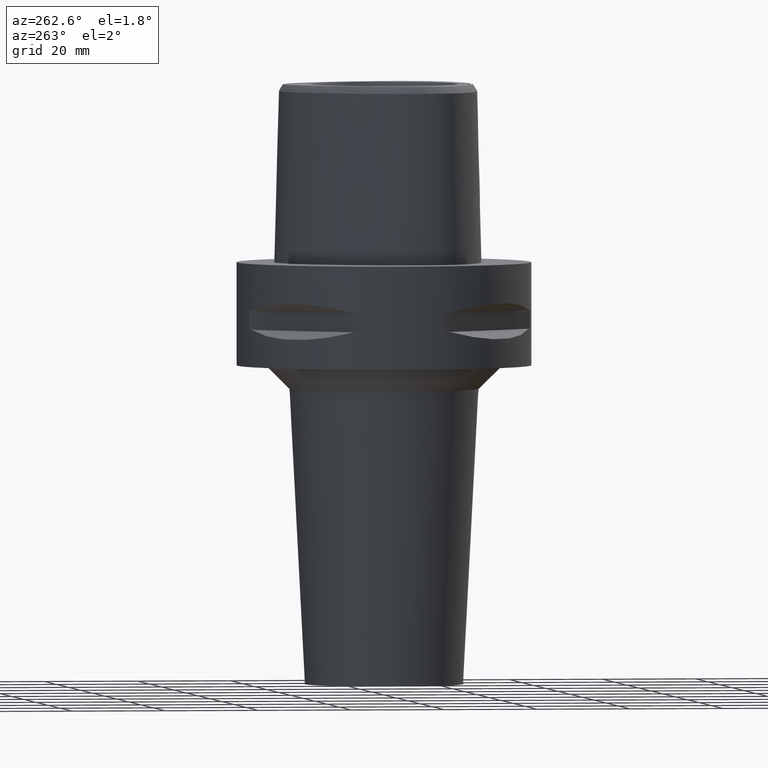
[diagram: clean part render]
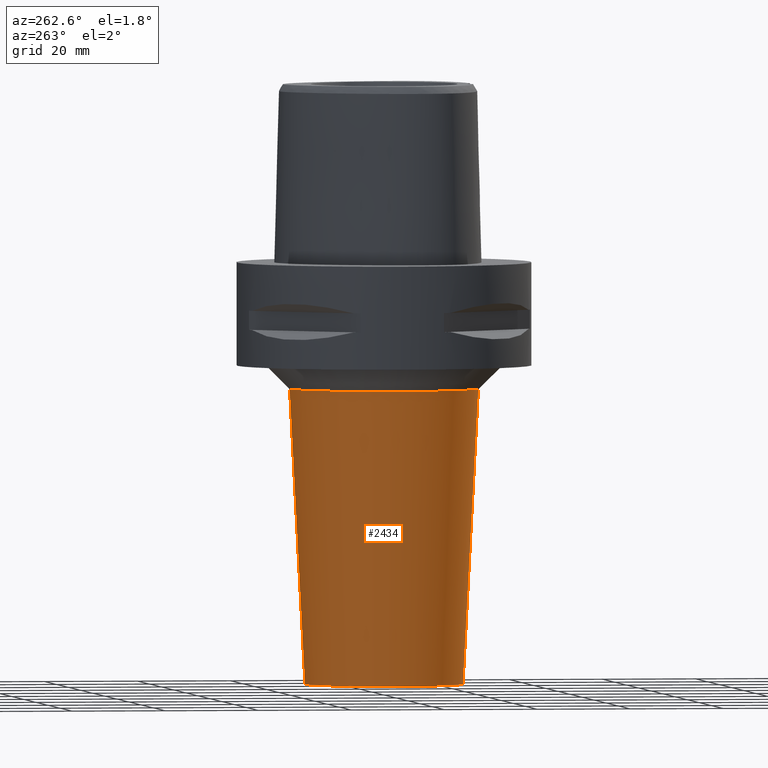
[diagram: same view with one face highlighted and labeled with its STEP entity id]
A machine part, auxiliary view. The second image highlights one B-rep face of the part: STEP entity #2434.
In plain terms, the highlighted conical surface has half-angle 3 deg.
Its self-contained STEP definition (entity closure, byte-faithful):
#547=CARTESIAN_POINT('',(0.E0,0.E0,-2.7E1));
#548=DIRECTION('',(0.E0,0.E0,-1.E0));
#549=DIRECTION('',(0.E0,-1.E0,0.E0));
#550=AXIS2_PLACEMENT_3D('',#547,#548,#549);
#562=DIRECTION('',(0.E0,-5.233595624292E-2,-9.986295347546E-1));
#563=VECTOR('',#562,6.308645779787E1);
#564=CARTESIAN_POINT('',(0.E0,2.030169009483E1,-2.7E1));
#565=LINE('',#564,#563);
#577=DIRECTION('',(0.E0,5.233595624292E-2,-9.986295347546E-1));
#578=VECTOR('',#577,6.308645779787E1);
#579=CARTESIAN_POINT('',(0.E0,-2.030169009483E1,-2.7E1));
#580=LINE('',#579,#578);
#592=CARTESIAN_POINT('',(0.E0,0.E0,-9.E1));
#593=DIRECTION('',(0.E0,0.E0,1.E0));
#594=DIRECTION('',(0.E0,1.E0,0.E0));
#595=AXIS2_PLACEMENT_3D('',#592,#593,#594);
#1504=CARTESIAN_POINT('',(0.E0,2.030169009483E1,-2.7E1));
#1505=VERTEX_POINT('',#1504);
#1506=CARTESIAN_POINT('',(0.E0,-2.030169009483E1,-2.7E1));
#1507=VERTEX_POINT('',#1506);
#1508=CARTESIAN_POINT('',(0.E0,1.7E1,-9.E1));
#1509=VERTEX_POINT('',#1508);
#1510=CARTESIAN_POINT('',(0.E0,-1.7E1,-9.E1));
#1511=VERTEX_POINT('',#1510);
#2422=CARTESIAN_POINT('',(0.E0,0.E0,-5.85E1));
#2423=DIRECTION('',(0.E0,0.E0,1.E0));
#2424=DIRECTION('',(0.E0,1.E0,0.E0));
#2425=AXIS2_PLACEMENT_3D('',#2422,#2423,#2424);
#2426=CONICAL_SURFACE('',#2425,1.865084504742E1,3.E0);
#2427=ORIENTED_EDGE('',*,*,#2412,.F.);
#2428=ORIENTED_EDGE('',*,*,#2389,.F.);
#2429=ORIENTED_EDGE('',*,*,#2416,.T.);
#2431=ORIENTED_EDGE('',*,*,#2430,.F.);
#2432=EDGE_LOOP('',(#2427,#2428,#2429,#2431));
#2433=FACE_OUTER_BOUND('',#2432,.F.);
#551=CIRCLE('',#550,2.030169009483E1);
#596=CIRCLE('',#595,1.7E1);
#2389=EDGE_CURVE('',#1507,#1505,#551,.T.);
#2412=EDGE_CURVE('',#1505,#1509,#565,.T.);
#2416=EDGE_CURVE('',#1507,#1511,#580,.T.);
#2430=EDGE_CURVE('',#1509,#1511,#596,.T.);
#2434=ADVANCED_FACE('',(#2433),#2426,.T.);